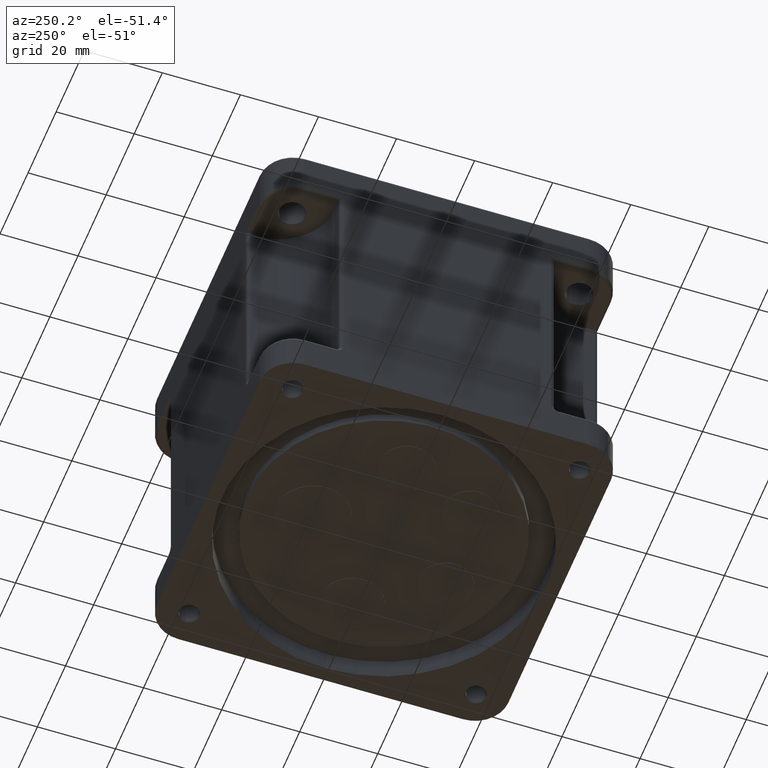
[diagram: clean part render]
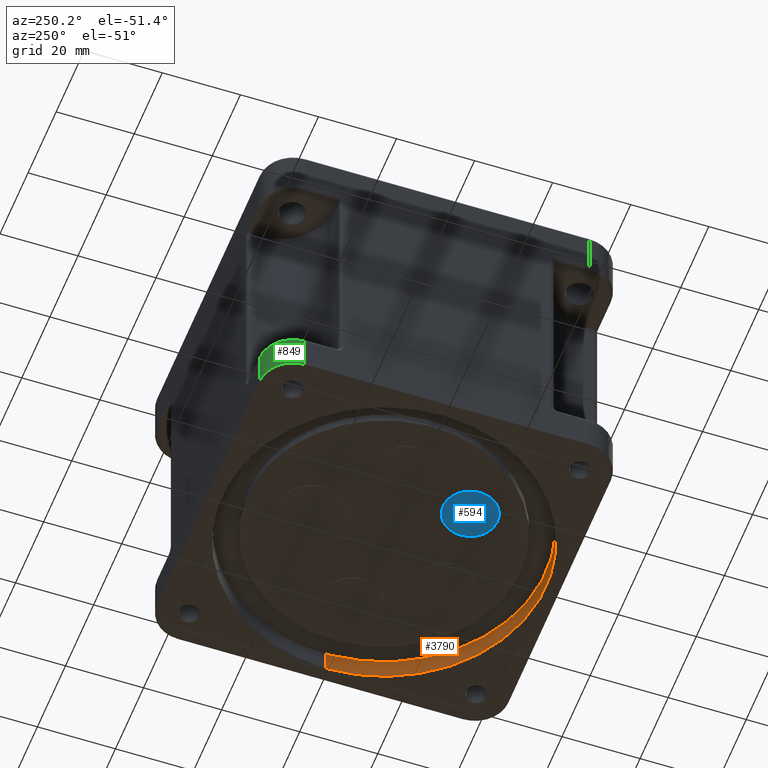
[diagram: same view with three faces highlighted in distinct colors, each labeled with its STEP entity id]
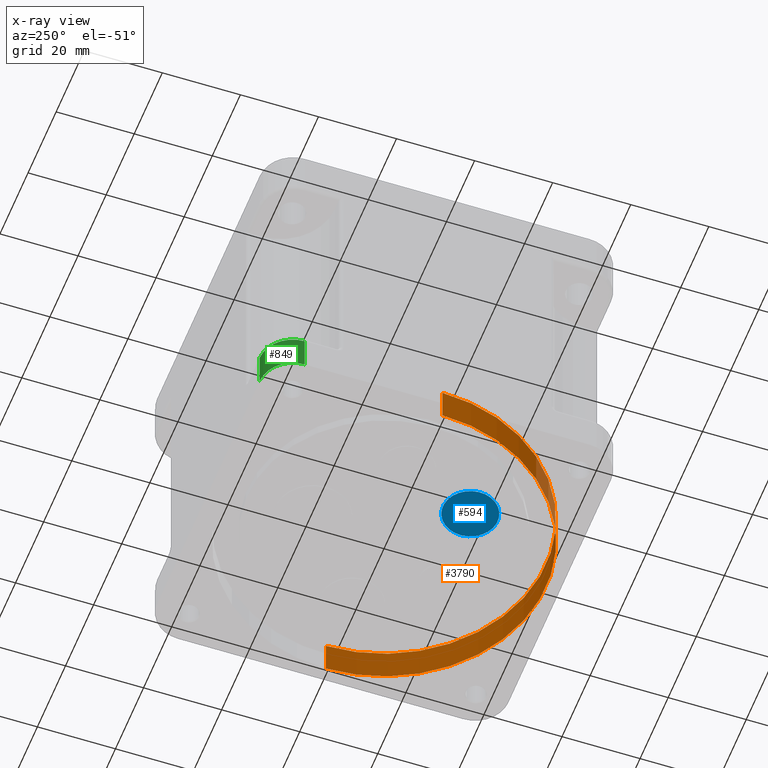
[diagram: x-ray of the same camera — body ghosted, the three highlighted faces saturated]
A machine part, auxiliary view with three faces highlighted in distinct colors.
The next image is the same camera in x-ray (body ghosted, the three faces saturated) — at least one of them is partly hidden behind the body in this view.
Their STEP definitions:

[orange] entity #3790 — the highlighted cylindrical surface (partial cylindrical patch) has radius 41.485 mm, axis along (-0, 0, 1).
#1236 = CARTESIAN_POINT ( 'NONE',  ( 0.0000000000000000000, 0.0000000000000000000, 80.29999999999999700 ) ) ;
#1268 = DIRECTION ( 'NONE',  ( -1.000000000000000000, 0.0000000000000000000, 0.0000000000000000000 ) ) ;
#1269 = AXIS2_PLACEMENT_3D ( 'NONE', #1236, #1321, #1268 ) ;
#1270 = FACE_OUTER_BOUND ( 'NONE', #3794, .T. ) ;
#1272 = CYLINDRICAL_SURFACE ( 'NONE', #1269, 41.48499999999999900 ) ;
#1295 = AXIS2_PLACEMENT_3D ( 'NONE', #1316, #1344, #1343 ) ;
#1301 = CIRCLE ( 'NONE', #1295, 41.48499999999999900 ) ;
#1316 = CARTESIAN_POINT ( 'NONE',  ( 0.0000000000000000000, 0.0000000000000000000, 80.00000000000000000 ) ) ;
#1321 = DIRECTION ( 'NONE',  ( -0.0000000000000000000, -0.0000000000000000000, -1.000000000000000000 ) ) ;
#1343 = DIRECTION ( 'NONE',  ( 1.000000000000000000, 0.0000000000000000000, 0.0000000000000000000 ) ) ;
#1344 = DIRECTION ( 'NONE',  ( 0.0000000000000000000, 0.0000000000000000000, 1.000000000000000000 ) ) ;
#1349 = DIRECTION ( 'NONE',  ( -0.0000000000000000000, -0.0000000000000000000, -1.000000000000000000 ) ) ;
#1350 = VECTOR ( 'NONE', #1349, 1000.000000000000000 ) ;
#1351 = CARTESIAN_POINT ( 'NONE',  ( -41.48499999999999900, 0.0000000000000000000, 80.29999999999999700 ) ) ;
#1352 = LINE ( 'NONE', #1351, #1350 ) ;
#1353 = CIRCLE ( 'NONE', #1366, 41.48499999999999900 ) ;
#1355 = CARTESIAN_POINT ( 'NONE',  ( 41.48499999999999900, 5.080447246262794800E-015, 80.00000000000000000 ) ) ;
#1366 = AXIS2_PLACEMENT_3D ( 'NONE', #1400, #1399, #1398 ) ;
#1367 = CARTESIAN_POINT ( 'NONE',  ( 41.48499999999999900, 5.080447246262794800E-015, 71.29999999999999700 ) ) ;
#1391 = CARTESIAN_POINT ( 'NONE',  ( -41.48499999999999900, 0.0000000000000000000, 80.00000000000000000 ) ) ;
#1398 = DIRECTION ( 'NONE',  ( 1.000000000000000000, 0.0000000000000000000, 0.0000000000000000000 ) ) ;
#1399 = DIRECTION ( 'NONE',  ( -0.0000000000000000000, 0.0000000000000000000, 1.000000000000000000 ) ) ;
#1400 = CARTESIAN_POINT ( 'NONE',  ( 0.0000000000000000000, 0.0000000000000000000, 71.29999999999999700 ) ) ;
#1413 = CARTESIAN_POINT ( 'NONE',  ( -41.48499999999999900, 0.0000000000000000000, 71.29999999999999700 ) ) ;
#1454 = DIRECTION ( 'NONE',  ( -0.0000000000000000000, -0.0000000000000000000, -1.000000000000000000 ) ) ;
#1455 = VECTOR ( 'NONE', #1454, 1000.000000000000000 ) ;
#1456 = CARTESIAN_POINT ( 'NONE',  ( 41.48499999999999900, 5.080447246262794800E-015, 80.29999999999999700 ) ) ;
#1457 = LINE ( 'NONE', #1456, #1455 ) ;
#3790 = ADVANCED_FACE ( 'NONE', ( #1270 ), #1272, .F. ) ;
#3794 = EDGE_LOOP ( 'NONE', ( #3795, #3847, #3857, #3818 ) ) ;
#3795 = ORIENTED_EDGE ( 'NONE', *, *, #3798, .T. ) ;
#3798 = EDGE_CURVE ( 'NONE', #3863, #3839, #1301, .T. ) ;
#3818 = ORIENTED_EDGE ( 'NONE', *, *, #3833, .F. ) ;
#3825 = VERTEX_POINT ( 'NONE', #1367 ) ;
#3833 = EDGE_CURVE ( 'NONE', #3863, #3864, #1352, .T. ) ;
#3836 = EDGE_CURVE ( 'NONE', #3864, #3825, #1353, .T. ) ;
#3839 = VERTEX_POINT ( 'NONE', #1355 ) ;
#3847 = ORIENTED_EDGE ( 'NONE', *, *, #3869, .T. ) ;
#3857 = ORIENTED_EDGE ( 'NONE', *, *, #3836, .F. ) ;
#3863 = VERTEX_POINT ( 'NONE', #1391 ) ;
#3864 = VERTEX_POINT ( 'NONE', #1413 ) ;
#3869 = EDGE_CURVE ( 'NONE', #3839, #3825, #1457, .T. ) ;

[blue] entity #594 — the highlighted planar face has unit normal (0, 0, -1).
#580 = ORIENTED_EDGE ( 'NONE', *, *, #3953, .T. ) ;
#591 = ORIENTED_EDGE ( 'NONE', *, *, #597, .T. ) ;
#593 = EDGE_LOOP ( 'NONE', ( #591, #580 ) ) ;
#594 = ADVANCED_FACE ( 'NONE', ( #5247 ), #5243, .T. ) ;
#597 = EDGE_CURVE ( 'NONE', #4024, #3956, #5239, .T. ) ;
#1444 = CARTESIAN_POINT ( 'NONE',  ( 5.379999999999999000, -17.87999999999999900, 1.399999999999999900 ) ) ;
#1599 = DIRECTION ( 'NONE',  ( 1.000000000000000000, 0.0000000000000000000, 0.0000000000000000000 ) ) ;
#1600 = DIRECTION ( 'NONE',  ( 0.0000000000000000000, 0.0000000000000000000, 1.000000000000000000 ) ) ;
#1601 = CARTESIAN_POINT ( 'NONE',  ( 12.38000000000000100, -17.87999999999999900, 1.399999999999999900 ) ) ;
#1602 = AXIS2_PLACEMENT_3D ( 'NONE', #1601, #1600, #1599 ) ;
#1608 = CARTESIAN_POINT ( 'NONE',  ( 19.38000000000000300, -17.87999999999999900, 1.399999999999999900 ) ) ;
#1609 = CIRCLE ( 'NONE', #1602, 7.000000000000000900 ) ;
#3953 = EDGE_CURVE ( 'NONE', #3956, #4024, #1609, .T. ) ;
#3956 = VERTEX_POINT ( 'NONE', #1608 ) ;
#4024 = VERTEX_POINT ( 'NONE', #1444 ) ;
#5227 = DIRECTION ( 'NONE',  ( 1.000000000000000000, 0.0000000000000000000, 0.0000000000000000000 ) ) ;
#5228 = DIRECTION ( 'NONE',  ( 0.0000000000000000000, 0.0000000000000000000, 1.000000000000000000 ) ) ;
#5229 = AXIS2_PLACEMENT_3D ( 'NONE', #5244, #5228, #5227 ) ;
#5234 = DIRECTION ( 'NONE',  ( 1.000000000000000000, 0.0000000000000000000, -0.0000000000000000000 ) ) ;
#5235 = DIRECTION ( 'NONE',  ( 0.0000000000000000000, 0.0000000000000000000, 1.000000000000000000 ) ) ;
#5239 = CIRCLE ( 'NONE', #5229, 7.000000000000000900 ) ;
#5240 = CARTESIAN_POINT ( 'NONE',  ( 12.38000000000000100, -17.87999999999999900, 1.399999999999999900 ) ) ;
#5243 = PLANE ( 'NONE',  #5245 ) ;
#5244 = CARTESIAN_POINT ( 'NONE',  ( 12.38000000000000100, -17.87999999999999900, 1.399999999999999900 ) ) ;
#5245 = AXIS2_PLACEMENT_3D ( 'NONE', #5240, #5235, #5234 ) ;
#5247 = FACE_OUTER_BOUND ( 'NONE', #593, .T. ) ;

[green] entity #849 — the highlighted cylindrical surface (edge-blend (fillet) strip) has radius 8.5 mm, axis along (-0, 0, 1).
#746 = VERTEX_POINT ( 'NONE', #5424 ) ;
#761 = EDGE_CURVE ( 'NONE', #796, #746, #5488, .T. ) ;
#766 = VERTEX_POINT ( 'NONE', #5489 ) ;
#780 = EDGE_CURVE ( 'NONE', #3157, #766, #5472, .T. ) ;
#796 = VERTEX_POINT ( 'NONE', #5546 ) ;
#835 = ORIENTED_EDGE ( 'NONE', *, *, #761, .F. ) ;
#839 = EDGE_LOOP ( 'NONE', ( #835, #846, #898, #904 ) ) ;
#843 = EDGE_CURVE ( 'NONE', #3157, #796, #5588, .T. ) ;
#846 = ORIENTED_EDGE ( 'NONE', *, *, #843, .F. ) ;
#849 = ADVANCED_FACE ( 'NONE', ( #5626 ), #5628, .T. ) ;
#884 = EDGE_CURVE ( 'NONE', #766, #746, #5647, .T. ) ;
#898 = ORIENTED_EDGE ( 'NONE', *, *, #780, .T. ) ;
#904 = ORIENTED_EDGE ( 'NONE', *, *, #884, .T. ) ;
#3157 = VERTEX_POINT ( 'NONE', #6164 ) ;
#5424 = CARTESIAN_POINT ( 'NONE',  ( 36.49999999999990100, 44.99999999999998600, 71.00000000000000000 ) ) ;
#5472 = LINE ( 'NONE', #5515, #5514 ) ;
#5484 = DIRECTION ( 'NONE',  ( -0.0000000000000000000, -0.0000000000000000000, -1.000000000000000000 ) ) ;
#5485 = VECTOR ( 'NONE', #5484, 1000.000000000000000 ) ;
#5487 = CARTESIAN_POINT ( 'NONE',  ( 36.49999999999990100, 44.99999999999998600, 80.29999999999999700 ) ) ;
#5488 = LINE ( 'NONE', #5487, #5485 ) ;
#5489 = CARTESIAN_POINT ( 'NONE',  ( 44.99999999999996400, 36.49999999999992200, 71.00000000000000000 ) ) ;
#5513 = DIRECTION ( 'NONE',  ( -0.0000000000000000000, -0.0000000000000000000, -1.000000000000000000 ) ) ;
#5514 = VECTOR ( 'NONE', #5513, 1000.000000000000000 ) ;
#5515 = CARTESIAN_POINT ( 'NONE',  ( 44.99999999999996400, 36.49999999999992200, 80.29999999999999700 ) ) ;
#5546 = CARTESIAN_POINT ( 'NONE',  ( 36.49999999999990100, 44.99999999999998600, 80.00000000000000000 ) ) ;
#5588 = CIRCLE ( 'NONE', #5633, 8.500000000000000000 ) ;
#5603 = DIRECTION ( 'NONE',  ( 0.0000000000000000000, 0.0000000000000000000, 1.000000000000000000 ) ) ;
#5617 = AXIS2_PLACEMENT_3D ( 'NONE', #5676, #5675, #5674 ) ;
#5626 = FACE_OUTER_BOUND ( 'NONE', #839, .T. ) ;
#5628 = CYLINDRICAL_SURFACE ( 'NONE', #5617, 8.500000000000000000 ) ;
#5632 = DIRECTION ( 'NONE',  ( 1.000000000000000000, 0.0000000000000000000, 0.0000000000000000000 ) ) ;
#5633 = AXIS2_PLACEMENT_3D ( 'NONE', #5642, #5603, #5632 ) ;
#5642 = CARTESIAN_POINT ( 'NONE',  ( 36.49999999999996400, 36.49999999999998600, 80.00000000000000000 ) ) ;
#5646 = CARTESIAN_POINT ( 'NONE',  ( 36.49999999999996400, 36.49999999999998600, 71.00000000000000000 ) ) ;
#5647 = CIRCLE ( 'NONE', #5691, 8.500000000000000000 ) ;
#5674 = DIRECTION ( 'NONE',  ( -1.000000000000000000, 0.0000000000000000000, 0.0000000000000000000 ) ) ;
#5675 = DIRECTION ( 'NONE',  ( -0.0000000000000000000, -0.0000000000000000000, -1.000000000000000000 ) ) ;
#5676 = CARTESIAN_POINT ( 'NONE',  ( 36.49999999999996400, 36.49999999999998600, 80.29999999999999700 ) ) ;
#5689 = DIRECTION ( 'NONE',  ( 1.000000000000000000, 0.0000000000000000000, 0.0000000000000000000 ) ) ;
#5690 = DIRECTION ( 'NONE',  ( 0.0000000000000000000, 0.0000000000000000000, 1.000000000000000000 ) ) ;
#5691 = AXIS2_PLACEMENT_3D ( 'NONE', #5646, #5690, #5689 ) ;
#6164 = CARTESIAN_POINT ( 'NONE',  ( 44.99999999999996400, 36.49999999999992200, 80.00000000000000000 ) ) ;